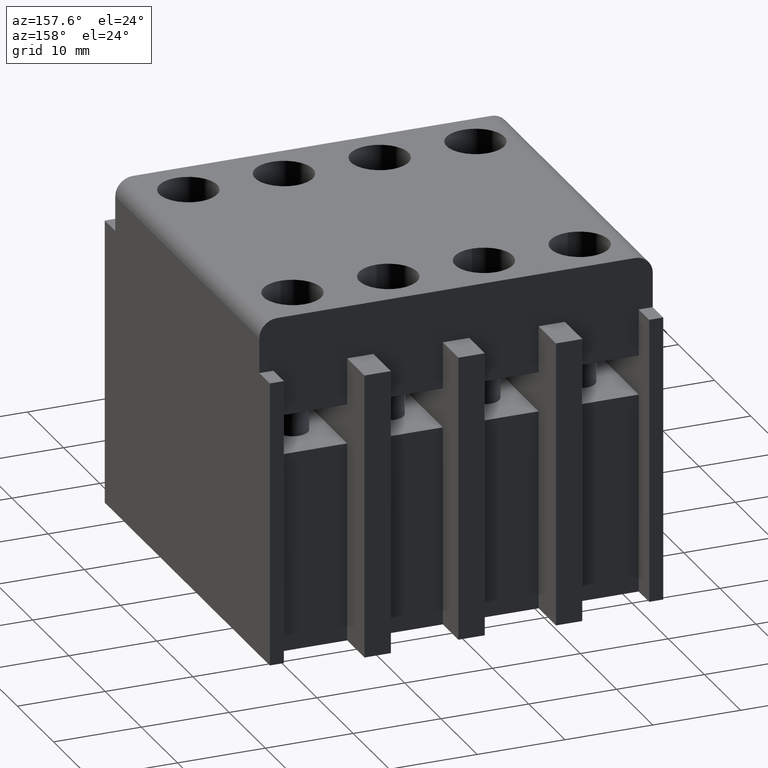
[diagram: clean part render]
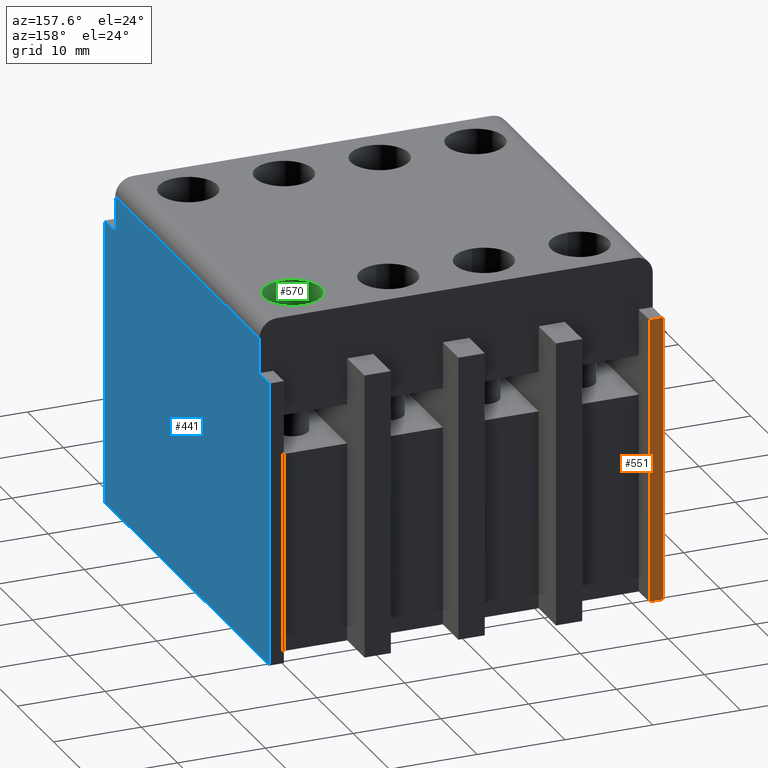
[diagram: same view with three faces highlighted in distinct colors, each labeled with its STEP entity id]
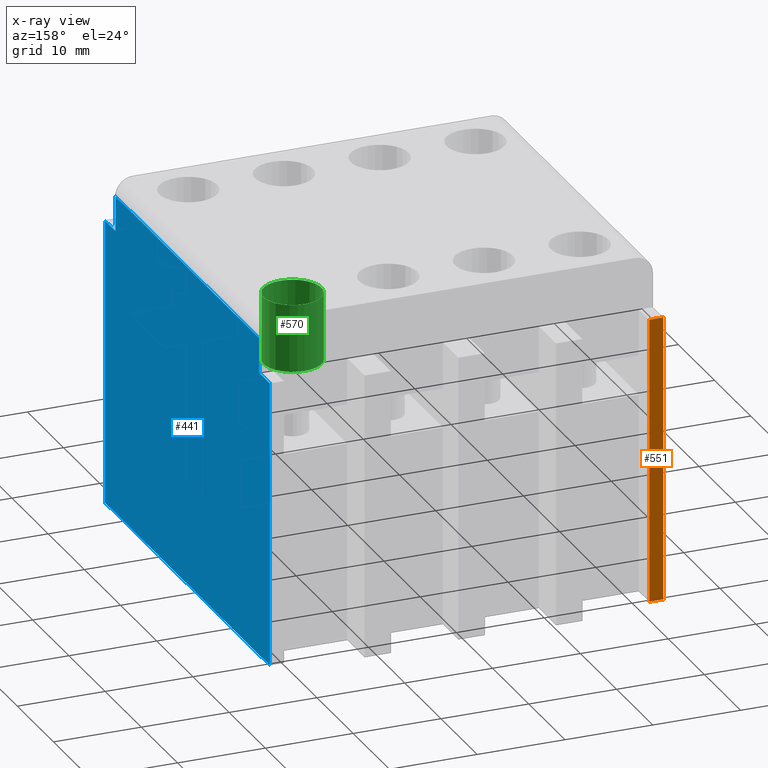
[diagram: x-ray of the same camera — body ghosted, the three highlighted faces saturated]
A machine part, auxiliary view with three faces highlighted in distinct colors.
The next image is the same camera in x-ray (body ghosted, the three faces saturated) — at least one of them is partly hidden behind the body in this view.
Their STEP definitions:

[orange] entity #551 — the highlighted planar face has unit normal (0, -1, 0).
#222=FACE_OUTER_BOUND('',#1155,.T.);
#551=ADVANCED_FACE('',(#222),#776,.F.);
#776=PLANE('',#4751);
#1155=EDGE_LOOP('',(#2031,#2032,#2033,#2034));
#2031=ORIENTED_EDGE('',*,*,#2926,.F.);
#2032=ORIENTED_EDGE('',*,*,#3112,.T.);
#2033=ORIENTED_EDGE('',*,*,#3357,.F.);
#2034=ORIENTED_EDGE('',*,*,#3363,.F.);
#2506=VERTEX_POINT('',#6092);
#2507=VERTEX_POINT('',#6094);
#2672=VERTEX_POINT('',#6470);
#2832=VERTEX_POINT('',#6978);
#2926=EDGE_CURVE('',#2506,#2507,#3536,.T.);
#3112=EDGE_CURVE('',#2506,#2672,#3684,.T.);
#3357=EDGE_CURVE('',#2832,#2672,#3879,.T.);
#3363=EDGE_CURVE('',#2507,#2832,#3885,.T.);
#3536=LINE('',#6093,#4038);
#3684=LINE('',#6471,#4186);
#3879=LINE('',#6979,#4381);
#3885=LINE('',#6991,#4387);
#4038=VECTOR('',#4888,1.);
#4186=VECTOR('',#5164,1.);
#4381=VECTOR('',#5665,1.);
#4387=VECTOR('',#5677,1.);
#4751=AXIS2_PLACEMENT_3D('',#6996,#5682,#5683);
#4888=DIRECTION('',(1.,0.,0.));
#5164=DIRECTION('',(0.,5.52326749582304E-014,1.));
#5665=DIRECTION('',(-1.,0.,0.));
#5677=DIRECTION('',(0.,5.52326749582304E-014,1.));
#5682=DIRECTION('',(0.,-1.,5.52326749582304E-014));
#5683=DIRECTION('',(0.,5.52335954751015E-014,1.));
#6092=CARTESIAN_POINT('',(-22.4,22.8000000000041,75.4999999999994));
#6093=CARTESIAN_POINT('',(-20.8,22.8000000000041,75.4999999999993));
#6094=CARTESIAN_POINT('',(-20.8,22.8000000000041,75.4999999999993));
#6470=CARTESIAN_POINT('',(-22.4,22.8000000000059,107.999999999999));
#6471=CARTESIAN_POINT('',(-22.4,22.8000000000039,72.2499999999987));
#6978=CARTESIAN_POINT('',(-20.8,22.8000000000059,107.999999999999));
#6979=CARTESIAN_POINT('',(-20.8,22.8000000000059,107.999999999999));
#6991=CARTESIAN_POINT('',(-20.8,22.8000000000039,72.2499999999987));
#6996=CARTESIAN_POINT('',(-20.8,22.8000000000039,72.2499999999987));

[blue] entity #441 — the highlighted planar face has unit normal (-1, 0, 0).
#136=FACE_OUTER_BOUND('',#1021,.T.);
#441=ADVANCED_FACE('',(#136),#678,.F.);
#678=PLANE('',#4591);
#1021=EDGE_LOOP('',(#1473,#1474,#1475,#1476,#1477,#1478,#1479,#1480));
#1473=ORIENTED_EDGE('',*,*,#3099,.T.);
#1474=ORIENTED_EDGE('',*,*,#3100,.T.);
#1475=ORIENTED_EDGE('',*,*,#3077,.F.);
#1476=ORIENTED_EDGE('',*,*,#3098,.F.);
#1477=ORIENTED_EDGE('',*,*,#3101,.F.);
#1478=ORIENTED_EDGE('',*,*,#2943,.F.);
#1479=ORIENTED_EDGE('',*,*,#3102,.T.);
#1480=ORIENTED_EDGE('',*,*,#3103,.T.);
#2523=VERTEX_POINT('',#6126);
#2524=VERTEX_POINT('',#6128);
#2651=VERTEX_POINT('',#6403);
#2652=VERTEX_POINT('',#6405);
#2664=VERTEX_POINT('',#6444);
#2665=VERTEX_POINT('',#6448);
#2666=VERTEX_POINT('',#6449);
#2667=VERTEX_POINT('',#6453);
#2943=EDGE_CURVE('',#2523,#2524,#3553,.T.);
#3077=EDGE_CURVE('',#2651,#2652,#3650,.T.);
#3098=EDGE_CURVE('',#2664,#2651,#3670,.T.);
#3099=EDGE_CURVE('',#2665,#2666,#3671,.T.);
#3100=EDGE_CURVE('',#2666,#2652,#3672,.T.);
#3101=EDGE_CURVE('',#2524,#2664,#3673,.T.);
#3102=EDGE_CURVE('',#2523,#2667,#3674,.T.);
#3103=EDGE_CURVE('',#2667,#2665,#3675,.T.);
#3553=LINE('',#6127,#4055);
#3650=LINE('',#6404,#4152);
#3670=LINE('',#6445,#4172);
#3671=LINE('',#6447,#4173);
#3672=LINE('',#6450,#4174);
#3673=LINE('',#6451,#4175);
#3674=LINE('',#6452,#4176);
#3675=LINE('',#6454,#4177);
#4055=VECTOR('',#4905,1.);
#4152=VECTOR('',#5106,1.);
#4172=VECTOR('',#5142,1.);
#4173=VECTOR('',#5145,1.);
#4174=VECTOR('',#5146,1.);
#4175=VECTOR('',#5147,1.);
#4176=VECTOR('',#5148,1.);
#4177=VECTOR('',#5149,1.);
#4591=AXIS2_PLACEMENT_3D('',#6455,#5150,#5151);
#4905=DIRECTION('',(0.,-1.,2.6968980355267E-014));
#5106=DIRECTION('',(0.,0.,1.));
#5142=DIRECTION('',(0.,1.,0.));
#5145=DIRECTION('',(0.,5.52326749582304E-014,1.));
#5146=DIRECTION('',(0.,-1.,0.));
#5147=DIRECTION('',(0.,0.,1.));
#5148=DIRECTION('',(0.,5.52326749582304E-014,1.));
#5149=DIRECTION('',(0.,-1.,5.52326749582304E-014));
#5150=DIRECTION('',(-1.,0.,0.));
#5151=DIRECTION('',(0.,0.,1.));
#6126=CARTESIAN_POINT('',(22.4,22.8000000000041,75.4999999999994));
#6127=CARTESIAN_POINT('',(22.4,6.93889390390723E-015,75.5));
#6128=CARTESIAN_POINT('',(22.4,-22.8,75.5000000000006));
#6403=CARTESIAN_POINT('',(22.4,-19.9,108.));
#6404=CARTESIAN_POINT('',(22.4,-19.9,108.));
#6405=CARTESIAN_POINT('',(22.4,-19.9,112.));
#6444=CARTESIAN_POINT('',(22.4,-22.8,108.));
#6445=CARTESIAN_POINT('',(22.4,-24.6999999999991,108.));
#6447=CARTESIAN_POINT('',(22.4,19.9000000000059,107.999999999999));
#6448=CARTESIAN_POINT('',(22.4,19.9000000000059,107.999999999999));
#6449=CARTESIAN_POINT('',(22.4,19.9000000000061,112.));
#6450=CARTESIAN_POINT('',(22.4,1.07016788684984E-012,112.));
#6451=CARTESIAN_POINT('',(22.4,-22.8,72.25));
#6452=CARTESIAN_POINT('',(22.4,22.8000000000039,72.2499999999987));
#6453=CARTESIAN_POINT('',(22.4,22.8000000000059,107.999999999999));
#6454=CARTESIAN_POINT('',(22.4,24.700000000005,107.999999999999));
#6455=CARTESIAN_POINT('',(22.4,1.07016788684984E-012,114.));

[green] entity #570 — the highlighted cylindrical surface (bore or boss wall) has radius 3.3 mm, axis along (0, 0, 1).
#111=CYLINDRICAL_SURFACE('',#4774,3.29999999999999);
#342=CIRCLE('',#4575,3.29999999999999);
#390=CIRCLE('',#4726,3.29999999999999);
#570=ADVANCED_FACE('',(#957,#958),#111,.F.);
#957=FACE_BOUND('',#1180,.T.);
#958=FACE_BOUND('',#1181,.T.);
#1180=EDGE_LOOP('',(#2131));
#1181=EDGE_LOOP('',(#2132));
#2131=ORIENTED_EDGE('',*,*,#3311,.T.);
#2132=ORIENTED_EDGE('',*,*,#3055,.F.);
#2635=VERTEX_POINT('',#6364);
#2805=VERTEX_POINT('',#6893);
#3055=EDGE_CURVE('',#2635,#2635,#342,.T.);
#3311=EDGE_CURVE('',#2805,#2805,#390,.T.);
#4575=AXIS2_PLACEMENT_3D('',#6363,#5075,#5076);
#4726=AXIS2_PLACEMENT_3D('',#6892,#5585,#5586);
#4774=AXIS2_PLACEMENT_3D('',#7048,#5747,#5748);
#5075=DIRECTION('',(0.,-5.52326749582304E-014,-1.));
#5076=DIRECTION('',(0.,-1.,5.46700731822995E-014));
#5585=DIRECTION('',(0.,-5.52326749582304E-014,-1.));
#5586=DIRECTION('',(0.,-1.,5.46700731822995E-014));
#5747=DIRECTION('',(0.,5.52326749582304E-014,1.));
#5748=DIRECTION('',(1.,0.,0.));
#6363=CARTESIAN_POINT('',(16.35,14.4000000000062,113.999999999999));
#6364=CARTESIAN_POINT('',(16.35,11.1000000000063,113.999999999999));
#6892=CARTESIAN_POINT('',(16.35,14.4000000000058,106.299999999999));
#6893=CARTESIAN_POINT('',(16.35,11.1000000000058,106.299999999999));
#7048=CARTESIAN_POINT('',(16.35,14.4000000000058,106.299999999999));